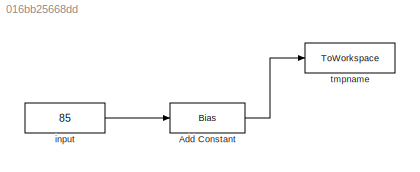
MODEL slx_016bb25668dd
KIND model
CONFIG AbsTol = auto
CONFIG EnableMultiTasking = off
CONFIG FixedStep = auto
CONFIG MaxStep = auto
CONFIG MinStep = auto
CONFIG RelTol = 1e-3
CONFIG SampleTimeConstraint = Unconstrained
CONFIG SolverName = VariableStepAuto
CONFIG StartTime = 0.0
CONFIG StopTime = 10.0
BLOCK [Bias] Add Constant
  Bias = 78
  SaturateOnIntegerOverflow = off
BLOCK [Constant] input
  Value = 85
BLOCK [ToWorkspace] tmpname
  FixptAsFi = on
  MaxDataPoints = inf
  Ports = [1]
  SampleTime = -1
  SaveFormat = Timeseries
  VariableName = simout
LINE Add Constant:1 -> tmpname:1
LINE input:1 -> Add Constant:1
